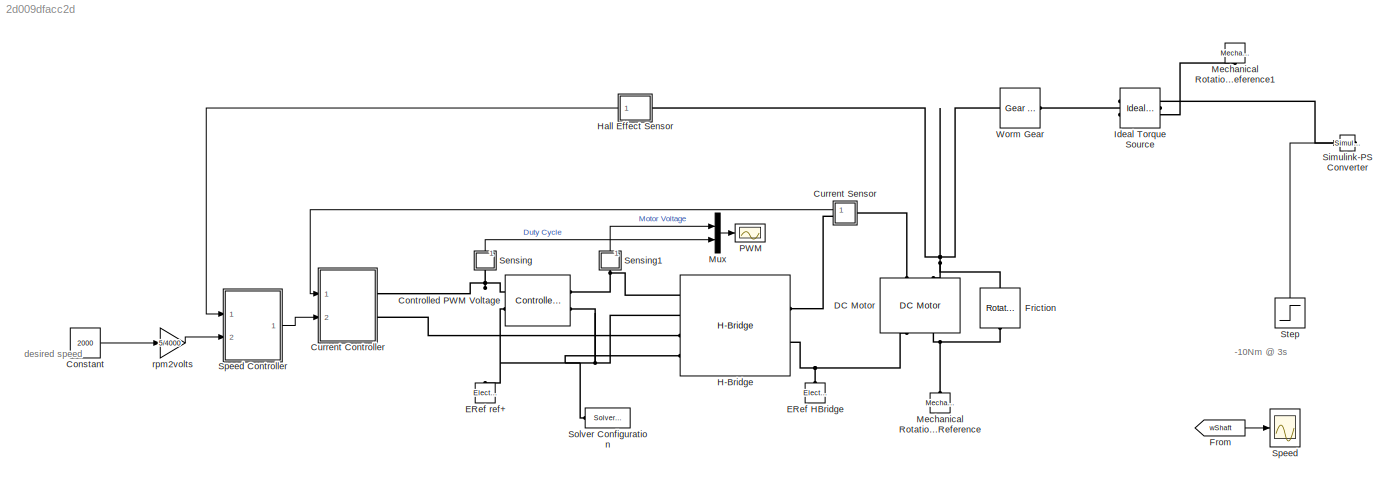
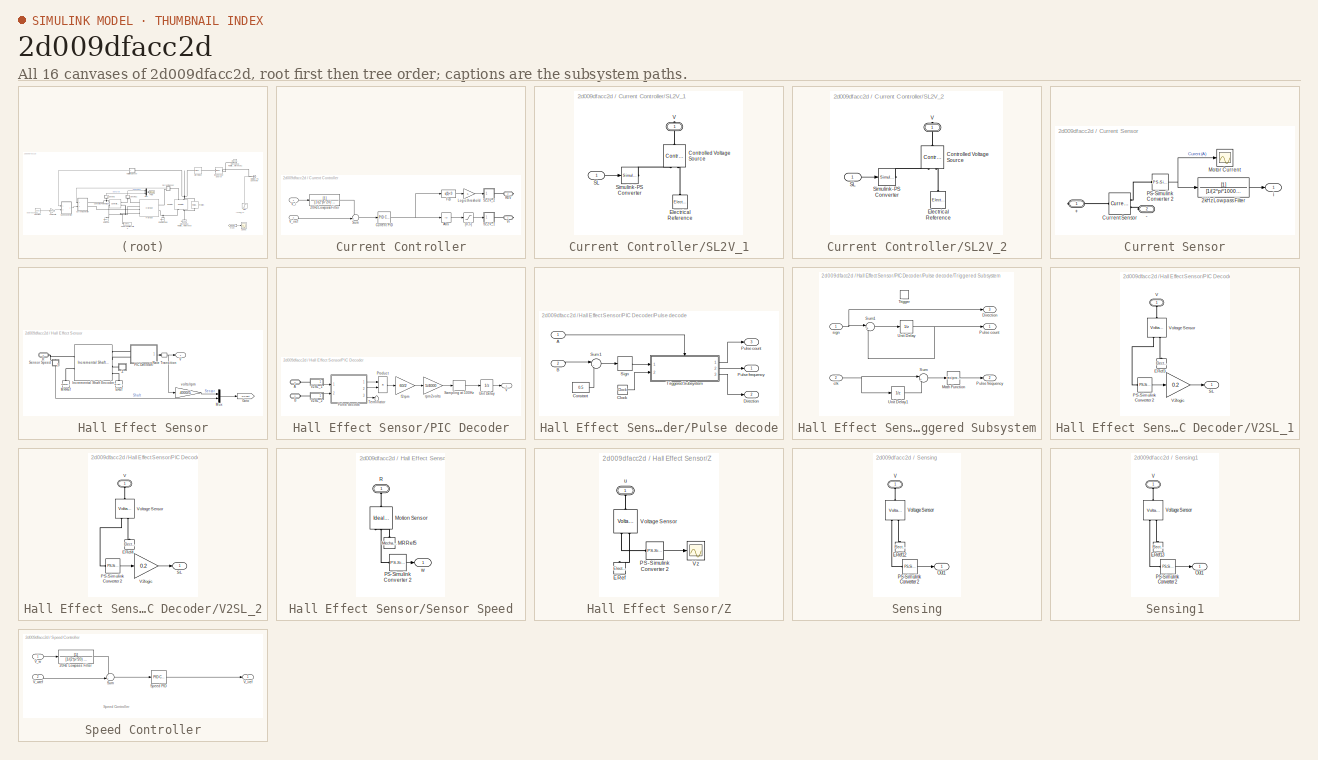
[diagram: thumbnail index - all 16 canvases of the model, root first then tree order]
MODEL slx_2d009dfacc2d
KIND model
CONFIG AbsTol = 1e-3
CONFIG EnableMultiTasking = off
CONFIG FixedStep = auto
CONFIG MaxStep = auto
CONFIG MinStep = auto
CONFIG RelTol = 1e-3
CONFIG SampleTimeConstraint = Unconstrained
CONFIG SolverName = VariableStepAuto
CONFIG StartTime = 0.0
CONFIG StopTime = 10.0
BLOCK [Constant] Constant
  Value = 2000
BLOCK [Reference] Controlled PWM Voltage  REF=ee_lib/Integrated Circuits/Controlled PWM
Voltage
  Ports = [0, 0, 0, 0, 0, 2, 2]
  SourceBlock = ee_lib/Integrated Circuits/Controlled PWM\nVoltage
  SourceProductBaseCode = PS
  SourceType = Controlled PWM\nVoltage
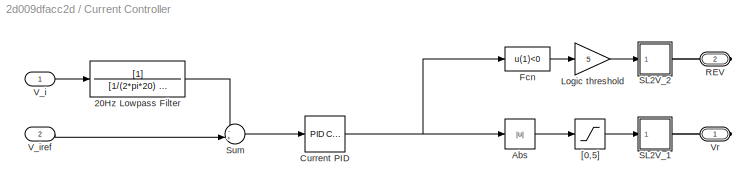
BLOCK [SubSystem] Current Controller
  Ports = [2, 0, 0, 0, 0, 0, 2]
  RequestExecContextInheritance = off
BLOCK [TransferFcn] Current Controller/20Hz Lowpass Filter
  Denominator = [1/(2*pi*20) 1]
BLOCK [Abs] Current Controller/Abs
  SaturateOnIntegerOverflow = off
BLOCK [Reference] Current Controller/Current PID  REF=slpidlib/PID Controller
  Ports = [1, 1]
  SourceBlock = slpidlib/PID Controller
  SourceProductBaseCode = SL
  SourceType = PID 1dof
BLOCK [Fcn] Current Controller/Fcn
  Expr = u(1)<0
BLOCK [Gain] Current Controller/Logic threshold
  Gain = 5
BLOCK [PMIOPort] Current Controller/REV
  Port = 2
  Side = Right
BLOCK [SubSystem] Current Controller/SL2V_1
  Ports = [1, 0, 0, 0, 0, 0, 1]
  RequestExecContextInheritance = off
BLOCK [Reference] Current Controller/SL2V_1/Controlled Voltage Source  REF=fl_lib/Electrical/Electrical Sources/Controlled Voltage
Source
  NameLocation = right
  Ports = [0, 0, 0, 0, 0, 1, 2]
  SourceBlock = fl_lib/Electrical/Electrical Sources/Controlled Voltage\nSource
  SourceProductBaseCode = PW,SS,VE
  SourceType = Controlled Voltage\nSource
BLOCK [Reference] Current Controller/SL2V_1/Electrical Reference  REF=fl_lib/Electrical/Electrical Elements/Electrical Reference
  NameLocation = right
  Ports = [0, 0, 0, 0, 0, 1]
  SourceBlock = fl_lib/Electrical/Electrical Elements/Electrical Reference
  SourceProductBaseCode = PW,SS,VE
  SourceType = Electrical Reference
BLOCK [Inport] Current Controller/SL2V_1/SL
BLOCK [Reference] Current Controller/SL2V_1/Simulink-PS Converter  REF=nesl_utility/Simulink-PS
Converter
  Ports = [1, 0, 0, 0, 0, 0, 1]
  SourceBlock = nesl_utility/Simulink-PS\nConverter
  SourceProductBaseCode = SS,PW,VE
  SourceType = Simulink-PS\nConverter
BLOCK [PMIOPort] Current Controller/SL2V_1/V
  NameLocation = right
  Side = Right
BLOCK [SubSystem] Current Controller/SL2V_2
  Ports = [1, 0, 0, 0, 0, 0, 1]
  RequestExecContextInheritance = off
BLOCK [Reference] Current Controller/SL2V_2/Controlled Voltage Source  REF=fl_lib/Electrical/Electrical Sources/Controlled Voltage
Source
  NameLocation = right
  Ports = [0, 0, 0, 0, 0, 1, 2]
  SourceBlock = fl_lib/Electrical/Electrical Sources/Controlled Voltage\nSource
  SourceProductBaseCode = PW,SS,VE
  SourceType = Controlled Voltage\nSource
BLOCK [Reference] Current Controller/SL2V_2/Electrical Reference  REF=fl_lib/Electrical/Electrical Elements/Electrical Reference
  NameLocation = right
  Ports = [0, 0, 0, 0, 0, 1]
  SourceBlock = fl_lib/Electrical/Electrical Elements/Electrical Reference
  SourceProductBaseCode = PW,SS,VE
  SourceType = Electrical Reference
BLOCK [Inport] Current Controller/SL2V_2/SL
BLOCK [Reference] Current Controller/SL2V_2/Simulink-PS Converter  REF=nesl_utility/Simulink-PS
Converter
  Ports = [1, 0, 0, 0, 0, 0, 1]
  SourceBlock = nesl_utility/Simulink-PS\nConverter
  SourceProductBaseCode = SS,PW,VE
  SourceType = Simulink-PS\nConverter
BLOCK [PMIOPort] Current Controller/SL2V_2/V
  NameLocation = right
  Side = Right
BLOCK [Sum] Current Controller/Sum
  Inputs = -+|
  Ports = [2, 1]
BLOCK [Inport] Current Controller/V_i
BLOCK [Inport] Current Controller/V_iref
  Port = 2
BLOCK [PMIOPort] Current Controller/Vr
  Side = Right
BLOCK [Saturate] Current Controller/[0,5]
  LowerLimit = 0
  UpperLimit = 5
BLOCK [SubSystem] Current Sensor
  NameLocation = top
  Ports = [0, 1, 0, 0, 0, 1, 1]
  RequestExecContextInheritance = off
BLOCK [PMIOPort] Current Sensor/+
  Side = Right
BLOCK [PMIOPort] Current Sensor/-
  Port = 2
  Side = Left
BLOCK [TransferFcn] Current Sensor/2kHz Lowpass Filter
  Denominator = [1/(2*pi*1000) 1]
BLOCK [Reference] Current Sensor/Current Sensor  REF=fl_lib/Electrical/Electrical Sensors/Current Sensor
  Ports = [0, 0, 0, 0, 0, 1, 2]
  SourceBlock = fl_lib/Electrical/Electrical Sensors/Current Sensor
  SourceProductBaseCode = PW,SS,VE
  SourceType = Current Sensor
BLOCK [Scope] Current Sensor/Motor Current
  Floating = off
  NameLocation = top
  NumInputPorts = 1
  Ports = [1]
  ScopeSpecificationString = Simulink.scopes.TimeScopeBlockCfg('CurrentConfiguration', extmgr.ConfigurationSet(extmgr.Configuration('Core','General UI',true),extmgr.Configuration('Core','Source UI',true),extmgr.Configuration('Sources','WiredSimulink',true,'DataLoggingVariableName','ScopeData3','DataLoggingSaveFormat','StructureWithTime','DataLoggingDecimation','1'),extmgr.Configuration('Visuals','Time Domain',true,'Serialized...<+1743ch>
BLOCK [Reference] Current Sensor/PS-Simulink Converter 2  REF=nesl_utility/PS-Simulink
Converter
  Ports = [0, 1, 0, 0, 0, 1]
  SourceBlock = nesl_utility/PS-Simulink\nConverter
  SourceProductBaseCode = SS,PW,VE
  SourceType = PS-Simulink\nConverter
BLOCK [Outport] Current Sensor/i
  VectorParamsAs1DForOutWhenUnconnected = off
BLOCK [Reference] DC Motor  REF=ee_lib/Electromechanical/Brushed Motors/DC Motor
  NameLocation = left
  Ports = [0, 0, 0, 0, 0, 2, 2]
  SourceBlock = ee_lib/Electromechanical/Brushed Motors/DC Motor
  SourceProductBaseCode = PS
  SourceType = DC Motor
BLOCK [Reference] ERef HBridge  REF=fl_lib/Electrical/Electrical Elements/Electrical Reference
  NameLocation = right
  Ports = [0, 0, 0, 0, 0, 1]
  SourceBlock = fl_lib/Electrical/Electrical Elements/Electrical Reference
  SourceProductBaseCode = PW,SS,VE
  SourceType = Electrical Reference
BLOCK [Reference] ERef ref+  REF=fl_lib/Electrical/Electrical Elements/Electrical Reference
  NameLocation = right
  Ports = [0, 0, 0, 0, 0, 1]
  SourceBlock = fl_lib/Electrical/Electrical Elements/Electrical Reference
  SourceProductBaseCode = PW,SS,VE
  SourceType = Electrical Reference
BLOCK [Reference] Friction  REF=fl_lib/Mechanical/Rotational Elements/Rotational Friction
  NameLocation = right
  Ports = [0, 0, 0, 0, 0, 1, 1]
  SourceBlock = fl_lib/Mechanical/Rotational Elements/Rotational Friction
  SourceProductBaseCode = PW,SS,VE
  SourceType = Rotational Friction
BLOCK [From] From
  GotoTag = wShaft
  TagVisibility = global
BLOCK [Reference] H-Bridge  REF=ee_lib/Semiconductors &
Converters/Converters/H-Bridge
  Ports = [0, 0, 0, 0, 0, 4, 2]
  SourceBlock = ee_lib/Semiconductors &\nConverters/Converters/H-Bridge
  SourceProductBaseCode = PS
  SourceType = H-Bridge
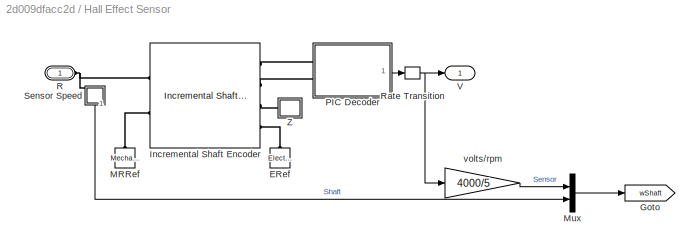
BLOCK [SubSystem] Hall Effect Sensor
  NameLocation = top
  Ports = [0, 1, 0, 0, 0, 1]
  RequestExecContextInheritance = off
BLOCK [Reference] Hall Effect Sensor/ERef  REF=fl_lib/Electrical/Electrical Elements/Electrical Reference
  NameLocation = right
  Ports = [0, 0, 0, 0, 0, 1]
  SourceBlock = fl_lib/Electrical/Electrical Elements/Electrical Reference
  SourceProductBaseCode = PW,SS,VE
  SourceType = Electrical Reference
BLOCK [Goto] Hall Effect Sensor/Goto
  GotoTag = wShaft
  TagVisibility = global
BLOCK [Reference] Hall Effect Sensor/Incremental Shaft Encoder  REF=ee_lib/Sensors &
Transducers/Incremental Shaft
Encoder
  Ports = [0, 0, 0, 0, 0, 2, 4]
  SourceBlock = ee_lib/Sensors &\nTransducers/Incremental Shaft\nEncoder
  SourceProductBaseCode = PS
  SourceType = Incremental Shaft\nEncoder
BLOCK [Reference] Hall Effect Sensor/MRRef  REF=fl_lib/Mechanical/Rotational Elements/Mechanical
Rotational Reference
  NameLocation = left
  Ports = [0, 0, 0, 0, 0, 1]
  SourceBlock = fl_lib/Mechanical/Rotational Elements/Mechanical\nRotational Reference
  SourceProductBaseCode = PW,SS,VE
  SourceType = Mechanical\nRotational Reference
BLOCK [Mux] Hall Effect Sensor/Mux
  DisplayOption = bar
  Inputs = 2
  Ports = [2, 1]
BLOCK [SubSystem] Hall Effect Sensor/PIC Decoder
  Ports = [0, 1, 0, 0, 0, 2]
  RequestExecContextInheritance = off
BLOCK [PMIOPort] Hall Effect Sensor/PIC Decoder/A
  Side = Left
BLOCK [PMIOPort] Hall Effect Sensor/PIC Decoder/B
  Port = 2
  Side = Left
BLOCK [Product] Hall Effect Sensor/PIC Decoder/Product
  Ports = [2, 1]
  RndMeth = Zero
BLOCK [SubSystem] Hall Effect Sensor/PIC Decoder/Pulse decode
  Ports = [2, 3]
  RequestExecContextInheritance = off
BLOCK [Inport] Hall Effect Sensor/PIC Decoder/Pulse decode/A
BLOCK [Inport] Hall Effect Sensor/PIC Decoder/Pulse decode/B
  Port = 2
BLOCK [Clock] Hall Effect Sensor/PIC Decoder/Pulse decode/Clock
BLOCK [Constant] Hall Effect Sensor/PIC Decoder/Pulse decode/Constant
  Value = 0.5
BLOCK [Outport] Hall Effect Sensor/PIC Decoder/Pulse decode/Direction
  Port = 2
  VectorParamsAs1DForOutWhenUnconnected = off
BLOCK [Outport] Hall Effect Sensor/PIC Decoder/Pulse decode/Pulse count
  Port = 3
  VectorParamsAs1DForOutWhenUnconnected = off
BLOCK [Outport] Hall Effect Sensor/PIC Decoder/Pulse decode/Pulse frequency
  VectorParamsAs1DForOutWhenUnconnected = off
BLOCK [Signum] Hall Effect Sensor/PIC Decoder/Pulse decode/Sign
BLOCK [Sum] Hall Effect Sensor/PIC Decoder/Pulse decode/Sum1
  Inputs = |-+
  Ports = [2, 1]
BLOCK [SubSystem] Hall Effect Sensor/PIC Decoder/Pulse decode/Triggered Subsystem
  Ports = [2, 3, 0, 1]
  RequestExecContextInheritance = off
  TreatAsAtomicUnit = on
BLOCK [Outport] Hall Effect Sensor/PIC Decoder/Pulse decode/Triggered Subsystem/Direction
  InitialOutput = 0
  Port = 3
  VectorParamsAs1DForOutWhenUnconnected = off
BLOCK [Math] Hall Effect Sensor/PIC Decoder/Pulse decode/Triggered Subsystem/Math Function
  Operator = reciprocal
  Ports = [1, 1]
  SignedPower = on
BLOCK [Outport] Hall Effect Sensor/PIC Decoder/Pulse decode/Triggered Subsystem/Pulse count
  InitialOutput = 0
  VectorParamsAs1DForOutWhenUnconnected = off
BLOCK [Outport] Hall Effect Sensor/PIC Decoder/Pulse decode/Triggered Subsystem/Pulse frequency
  Port = 2
  VectorParamsAs1DForOutWhenUnconnected = off
BLOCK [Sum] Hall Effect Sensor/PIC Decoder/Pulse decode/Triggered Subsystem/Sum
  Inputs = |+-
  Ports = [2, 1]
BLOCK [Sum] Hall Effect Sensor/PIC Decoder/Pulse decode/Triggered Subsystem/Sum1
  Inputs = |++
  Ports = [2, 1]
BLOCK [TriggerPort] Hall Effect Sensor/PIC Decoder/Pulse decode/Triggered Subsystem/Trigger
  Ports = []
  StatesWhenEnabling = held
  VariantControl = Variant
BLOCK [UnitDelay] Hall Effect Sensor/PIC Decoder/Pulse decode/Triggered Subsystem/Unit Delay
  HasFrameUpgradeWarning = on
  SampleTime = -1
BLOCK [UnitDelay] Hall Effect Sensor/PIC Decoder/Pulse decode/Triggered Subsystem/Unit Delay1
  HasFrameUpgradeWarning = on
  InitialCondition = -1e10
  SampleTime = -1
BLOCK [Inport] Hall Effect Sensor/PIC Decoder/Pulse decode/Triggered Subsystem/clk
  Port = 2
BLOCK [Inport] Hall Effect Sensor/PIC Decoder/Pulse decode/Triggered Subsystem/sign
BLOCK [ZeroOrderHold] Hall Effect Sensor/PIC Decoder/Sampling at 100Hz
  SampleTime = 0.01
BLOCK [Terminator] Hall Effect Sensor/PIC Decoder/Terminator
BLOCK [UnitDelay] Hall Effect Sensor/PIC Decoder/Unit Delay
  HasFrameUpgradeWarning = on
  SampleTime = 0.01
BLOCK [Outport] Hall Effect Sensor/PIC Decoder/V
  VectorParamsAs1DForOutWhenUnconnected = off
BLOCK [SubSystem] Hall Effect Sensor/PIC Decoder/V2SL_1
  Ports = [0, 1, 0, 0, 0, 1]
  RequestExecContextInheritance = off
BLOCK [Reference] Hall Effect Sensor/PIC Decoder/V2SL_1/ERef3  REF=fl_lib/Electrical/Electrical Elements/Electrical Reference
  NameLocation = right
  Ports = [0, 0, 0, 0, 0, 1]
  SourceBlock = fl_lib/Electrical/Electrical Elements/Electrical Reference
  SourceProductBaseCode = PW,SS,VE
  SourceType = Electrical Reference
BLOCK [Reference] Hall Effect Sensor/PIC Decoder/V2SL_1/PS-Simulink Converter 2  REF=nesl_utility/PS-Simulink
Converter
  Ports = [0, 1, 0, 0, 0, 1]
  SourceBlock = nesl_utility/PS-Simulink\nConverter
  SourceProductBaseCode = SS,PW,VE
  SourceType = PS-Simulink\nConverter
BLOCK [Outport] Hall Effect Sensor/PIC Decoder/V2SL_1/SL
  VectorParamsAs1DForOutWhenUnconnected = off
BLOCK [PMIOPort] Hall Effect Sensor/PIC Decoder/V2SL_1/V
  NameLocation = right
  Side = Left
BLOCK [Gain] Hall Effect Sensor/PIC Decoder/V2SL_1/V2logic
  Gain = 0.2
BLOCK [Reference] Hall Effect Sensor/PIC Decoder/V2SL_1/Voltage Sensor  REF=fl_lib/Electrical/Electrical Sensors/Voltage Sensor
  NameLocation = right
  Ports = [0, 0, 0, 0, 0, 1, 2]
  SourceBlock = fl_lib/Electrical/Electrical Sensors/Voltage Sensor
  SourceProductBaseCode = PW,SS,VE
  SourceType = Voltage Sensor
BLOCK [SubSystem] Hall Effect Sensor/PIC Decoder/V2SL_2
  Ports = [0, 1, 0, 0, 0, 1]
  RequestExecContextInheritance = off
BLOCK [Reference] Hall Effect Sensor/PIC Decoder/V2SL_2/ERef4  REF=fl_lib/Electrical/Electrical Elements/Electrical Reference
  NameLocation = right
  Ports = [0, 0, 0, 0, 0, 1]
  SourceBlock = fl_lib/Electrical/Electrical Elements/Electrical Reference
  SourceProductBaseCode = PW,SS,VE
  SourceType = Electrical Reference
BLOCK [Reference] Hall Effect Sensor/PIC Decoder/V2SL_2/PS-Simulink Converter 2  REF=nesl_utility/PS-Simulink
Converter
  Ports = [0, 1, 0, 0, 0, 1]
  SourceBlock = nesl_utility/PS-Simulink\nConverter
  SourceProductBaseCode = SS,PW,VE
  SourceType = PS-Simulink\nConverter
BLOCK [Outport] Hall Effect Sensor/PIC Decoder/V2SL_2/SL
  VectorParamsAs1DForOutWhenUnconnected = off
BLOCK [PMIOPort] Hall Effect Sensor/PIC Decoder/V2SL_2/V
  NameLocation = right
  Side = Left
BLOCK [Gain] Hall Effect Sensor/PIC Decoder/V2SL_2/V2logic
  Gain = 0.2
BLOCK [Reference] Hall Effect Sensor/PIC Decoder/V2SL_2/Voltage Sensor  REF=fl_lib/Electrical/Electrical Sensors/Voltage Sensor
  NameLocation = right
  Ports = [0, 0, 0, 0, 0, 1, 2]
  SourceBlock = fl_lib/Electrical/Electrical Sensors/Voltage Sensor
  SourceProductBaseCode = PW,SS,VE
  SourceType = Voltage Sensor
BLOCK [Gain] Hall Effect Sensor/PIC Decoder/f2rpm
  Gain = 60/2
BLOCK [Gain] Hall Effect Sensor/PIC Decoder/rpm2volts
  Gain = 5/4000
BLOCK [PMIOPort] Hall Effect Sensor/R
  Side = Left
BLOCK [RateTransition] Hall Effect Sensor/Rate Transition
BLOCK [SubSystem] Hall Effect Sensor/Sensor Speed
  NameLocation = left
  Ports = [0, 1, 0, 0, 0, 1]
  RequestExecContextInheritance = off
BLOCK [Reference] Hall Effect Sensor/Sensor Speed/MRRef5  REF=fl_lib/Mechanical/Rotational Elements/Mechanical
Rotational Reference
  NameLocation = left
  Ports = [0, 0, 0, 0, 0, 1]
  SourceBlock = fl_lib/Mechanical/Rotational Elements/Mechanical\nRotational Reference
  SourceProductBaseCode = PW,SS,VE
  SourceType = Mechanical\nRotational Reference
BLOCK [Reference] Hall Effect Sensor/Sensor Speed/Motion Sensor  REF=fl_lib/Mechanical/Mechanical Sensors/Ideal Rotational
Motion Sensor
  NameLocation = right
  Ports = [0, 0, 0, 0, 0, 1, 3]
  SourceBlock = fl_lib/Mechanical/Mechanical Sensors/Ideal Rotational\nMotion Sensor
  SourceProductBaseCode = PW,SS,VE
  SourceType = Ideal Rotational\nMotion Sensor
BLOCK [Reference] Hall Effect Sensor/Sensor Speed/PS-Simulink Converter 2  REF=nesl_utility/PS-Simulink
Converter
  Ports = [0, 1, 0, 0, 0, 1]
  SourceBlock = nesl_utility/PS-Simulink\nConverter
  SourceProductBaseCode = SS,PW,VE
  SourceType = PS-Simulink\nConverter
BLOCK [PMIOPort] Hall Effect Sensor/Sensor Speed/R
  NameLocation = right
  Side = Left
BLOCK [Outport] Hall Effect Sensor/Sensor Speed/w
  VectorParamsAs1DForOutWhenUnconnected = off
BLOCK [Outport] Hall Effect Sensor/V
  VectorParamsAs1DForOutWhenUnconnected = off
BLOCK [SubSystem] Hall Effect Sensor/Z
  Ports = [0, 0, 0, 0, 0, 1]
  RequestExecContextInheritance = off
BLOCK [Reference] Hall Effect Sensor/Z/ERef  REF=fl_lib/Electrical/Electrical Elements/Electrical Reference
  NameLocation = right
  Ports = [0, 0, 0, 0, 0, 1]
  SourceBlock = fl_lib/Electrical/Electrical Elements/Electrical Reference
  SourceProductBaseCode = PW,SS,VE
  SourceType = Electrical Reference
BLOCK [Reference] Hall Effect Sensor/Z/PS-Simulink Converter 2  REF=nesl_utility/PS-Simulink
Converter
  Ports = [0, 1, 0, 0, 0, 1]
  SourceBlock = nesl_utility/PS-Simulink\nConverter
  SourceProductBaseCode = SS,PW,VE
  SourceType = PS-Simulink\nConverter
BLOCK [Reference] Hall Effect Sensor/Z/Voltage Sensor  REF=fl_lib/Electrical/Electrical Sensors/Voltage Sensor
  NameLocation = right
  Ports = [0, 0, 0, 0, 0, 1, 2]
  SourceBlock = fl_lib/Electrical/Electrical Sensors/Voltage Sensor
  SourceProductBaseCode = PW,SS,VE
  SourceType = Voltage Sensor
BLOCK [Scope] Hall Effect Sensor/Z/Vz
  Floating = off
  NumInputPorts = 1
  Ports = [1]
  ScopeSpecificationString = Simulink.scopes.TimeScopeBlockCfg('CurrentConfiguration', extmgr.ConfigurationSet(extmgr.Configuration('Core','General UI',true),extmgr.Configuration('Core','Source UI',true),extmgr.Configuration('Sources','WiredSimulink',true,'DataLoggingVariableName','ScopeData6','DataLoggingSaveFormat','StructureWithTime','DataLoggingDecimation','1'),extmgr.Configuration('Visuals','Time Domain',true,'Serialized...<+1618ch>
BLOCK [PMIOPort] Hall Effect Sensor/Z/u
  NameLocation = right
  Side = Left
BLOCK [Gain] Hall Effect Sensor/volts//rpm
  Gain = 4000/5
  NameLocation = top
BLOCK [Reference] Ideal Torque Source  REF=fl_lib/Mechanical/Mechanical Sources/Ideal Torque Source
  NameLocation = top
  Ports = [0, 0, 0, 0, 0, 1, 2]
  SourceBlock = fl_lib/Mechanical/Mechanical Sources/Ideal Torque Source
  SourceProductBaseCode = PW,SS,VE
  SourceType = Ideal Torque Source
BLOCK [Reference] Mechanical Rotational Reference  REF=fl_lib/Mechanical/Rotational Elements/Mechanical
Rotational Reference
  NameLocation = right
  Ports = [0, 0, 0, 0, 0, 1]
  SourceBlock = fl_lib/Mechanical/Rotational Elements/Mechanical\nRotational Reference
  SourceProductBaseCode = PW,SS,VE
  SourceType = Mechanical\nRotational Reference
BLOCK [Reference] Mechanical Rotational Reference1  REF=fl_lib/Mechanical/Rotational Elements/Mechanical
Rotational Reference
  NameLocation = right
  Ports = [0, 0, 0, 0, 0, 1]
  SourceBlock = fl_lib/Mechanical/Rotational Elements/Mechanical\nRotational Reference
  SourceProductBaseCode = PW,SS,VE
  SourceType = Mechanical\nRotational Reference
BLOCK [Mux] Mux
  DisplayOption = bar
  Inputs = 2
  Ports = [2, 1]
BLOCK [Scope] PWM
  Floating = off
  NumInputPorts = 1
  Ports = [1]
  ScopeSpecificationString = Simulink.scopes.TimeScopeBlockCfg('CurrentConfiguration', extmgr.ConfigurationSet(extmgr.Configuration('Core','General UI',true,'FigureColor',[0.501960784313725 0.501960784313725 0.501960784313725]),extmgr.Configuration('Core','Source UI',true),extmgr.Configuration('Sources','WiredSimulink',true,'DataLoggingSaveFormat','StructureWithTime','DataLoggingDecimation','1','DataLoggingVariableName','Scop...<+2770ch>
BLOCK [SubSystem] Sensing
  NameLocation = right
  Ports = [0, 1, 0, 0, 0, 1]
  RequestExecContextInheritance = off
BLOCK [Reference] Sensing/ERef12  REF=fl_lib/Electrical/Electrical Elements/Electrical Reference
  NameLocation = right
  Ports = [0, 0, 0, 0, 0, 1]
  SourceBlock = fl_lib/Electrical/Electrical Elements/Electrical Reference
  SourceProductBaseCode = PW,SS,VE
  SourceType = Electrical Reference
BLOCK [Outport] Sensing/Out1
  VectorParamsAs1DForOutWhenUnconnected = off
BLOCK [Reference] Sensing/PS-Simulink Converter 2  REF=nesl_utility/PS-Simulink
Converter
  Ports = [0, 1, 0, 0, 0, 1]
  SourceBlock = nesl_utility/PS-Simulink\nConverter
  SourceProductBaseCode = SS,PW,VE
  SourceType = PS-Simulink\nConverter
BLOCK [PMIOPort] Sensing/V
  NameLocation = right
  Side = Left
BLOCK [Reference] Sensing/Voltage Sensor  REF=fl_lib/Electrical/Electrical Sensors/Voltage Sensor
  NameLocation = right
  Ports = [0, 0, 0, 0, 0, 1, 2]
  SourceBlock = fl_lib/Electrical/Electrical Sensors/Voltage Sensor
  SourceProductBaseCode = PW,SS,VE
  SourceType = Voltage Sensor
BLOCK [SubSystem] Sensing1
  NameLocation = right
  Ports = [0, 1, 0, 0, 0, 1]
  RequestExecContextInheritance = off
BLOCK [Reference] Sensing1/ERef13  REF=fl_lib/Electrical/Electrical Elements/Electrical Reference
  NameLocation = right
  Ports = [0, 0, 0, 0, 0, 1]
  SourceBlock = fl_lib/Electrical/Electrical Elements/Electrical Reference
  SourceProductBaseCode = PW,SS,VE
  SourceType = Electrical Reference
BLOCK [Outport] Sensing1/Out1
  VectorParamsAs1DForOutWhenUnconnected = off
BLOCK [Reference] Sensing1/PS-Simulink Converter 2  REF=nesl_utility/PS-Simulink
Converter
  Ports = [0, 1, 0, 0, 0, 1]
  SourceBlock = nesl_utility/PS-Simulink\nConverter
  SourceProductBaseCode = SS,PW,VE
  SourceType = PS-Simulink\nConverter
BLOCK [PMIOPort] Sensing1/V
  NameLocation = right
  Side = Left
BLOCK [Reference] Sensing1/Voltage Sensor  REF=fl_lib/Electrical/Electrical Sensors/Voltage Sensor
  NameLocation = right
  Ports = [0, 0, 0, 0, 0, 1, 2]
  SourceBlock = fl_lib/Electrical/Electrical Sensors/Voltage Sensor
  SourceProductBaseCode = PW,SS,VE
  SourceType = Voltage Sensor
BLOCK [Reference] Simulink-PS Converter  REF=nesl_utility/Simulink-PS
Converter
  Ports = [1, 0, 0, 0, 0, 0, 1]
  SourceBlock = nesl_utility/Simulink-PS\nConverter
  SourceProductBaseCode = SS,PW,VE
  SourceType = Simulink-PS\nConverter
BLOCK [Reference] Solver Configuration  REF=nesl_utility/Solver
Configuration
  Ports = [0, 0, 0, 0, 0, 0, 1]
  SourceBlock = nesl_utility/Solver\nConfiguration
  SourceProductBaseCode = SS,PW,VE
  SourceType = Solver\nConfiguration
BLOCK [Scope] Speed
  Floating = off
  NumInputPorts = 1
  Ports = [1]
  ScopeSpecificationString = Simulink.scopes.TimeScopeBlockCfg('CurrentConfiguration', extmgr.ConfigurationSet(extmgr.Configuration('Core','General UI',true,'FigureColor',[0.501960784313725 0.501960784313725 0.501960784313725]),extmgr.Configuration('Core','Source UI',true),extmgr.Configuration('Sources','WiredSimulink',true,'DataLoggingVariableName','ScopeData2','DataLoggingSaveFormat','StructureWithTime','DataLoggingDecimati...<+2166ch>
BLOCK [SubSystem] Speed Controller
  Ports = [2, 1]
  RequestExecContextInheritance = off
BLOCK [TransferFcn] Speed Controller/20Hz Lowpass Filter
  Denominator = [1/(2*pi*20) 1]
BLOCK [Reference] Speed Controller/Speed PID  REF=slpidlib/PID Controller
  Ports = [1, 1]
  SourceBlock = slpidlib/PID Controller
  SourceProductBaseCode = SL
  SourceType = PID 1dof
BLOCK [Sum] Speed Controller/Sum
  Inputs = -+|
  Ports = [2, 1]
BLOCK [Outport] Speed Controller/V_iref
  VectorParamsAs1DForOutWhenUnconnected = off
BLOCK [Inport] Speed Controller/V_w
BLOCK [Inport] Speed Controller/V_wref
  Port = 2
BLOCK [Step] Step
  After = -10
  NameLocation = right
  SampleTime = 0
  Time = 3
BLOCK [Reference] Worm Gear  REF=fl_lib/Mechanical/Mechanisms/Gear Box
  Ports = [0, 0, 0, 0, 0, 1, 1]
  SourceBlock = fl_lib/Mechanical/Mechanisms/Gear Box
  SourceProductBaseCode = PW,SS,VE
  SourceType = Gear Box
BLOCK [Gain] rpm2volts
  Gain = 5/4000
ANNOTATION (root): -10Nm @ 3s
ANNOTATION (root): desired speed
ANNOTATION Speed Controller: Speed Controller
LINE Constant:1 -> rpm2volts:1
LINE Current Controller/20Hz Lowpass Filter:1 -> Current Controller/Sum:1
LINE Current Controller/Abs:1 -> Current Controller/[0,5]:1
NET Current Controller/Current PID:1 -> Current Controller/Abs:1, Current Controller/Fcn:1
LINE Current Controller/Fcn:1 -> Current Controller/Logic threshold:1
LINE Current Controller/Logic threshold:1 -> Current Controller/SL2V_2:1
LINE Current Controller/SL2V_1/SL:1 -> Current Controller/SL2V_1/Simulink-PS Converter:1
LINE Current Controller/SL2V_2/SL:1 -> Current Controller/SL2V_2/Simulink-PS Converter:1
LINE Current Controller/Sum:1 -> Current Controller/Current PID:1
LINE Current Controller/V_i:1 -> Current Controller/20Hz Lowpass Filter:1
LINE Current Controller/V_iref:1 -> Current Controller/Sum:2
LINE Current Controller/[0,5]:1 -> Current Controller/SL2V_1:1
LINE Current Sensor/2kHz Lowpass Filter:1 -> Current Sensor/i:1
NET Current Sensor/PS-Simulink Converter 2:1 -> Current Sensor/2kHz Lowpass Filter:1, Current Sensor/Motor Current:1
LINE Current Sensor:1 -> Current Controller:1
LINE From:1 -> Speed:1
LINE Hall Effect Sensor/Mux:1 -> Hall Effect Sensor/Goto:1
LINE Hall Effect Sensor/PIC Decoder/Product:1 -> Hall Effect Sensor/PIC Decoder/f2rpm:1
LINE Hall Effect Sensor/PIC Decoder/Pulse decode/A:1 -> Hall Effect Sensor/PIC Decoder/Pulse decode/Triggered Subsystem:trigger
LINE Hall Effect Sensor/PIC Decoder/Pulse decode/B:1 -> Hall Effect Sensor/PIC Decoder/Pulse decode/Sum1:1
LINE Hall Effect Sensor/PIC Decoder/Pulse decode/Clock:1 -> Hall Effect Sensor/PIC Decoder/Pulse decode/Triggered Subsystem:2
LINE Hall Effect Sensor/PIC Decoder/Pulse decode/Constant:1 -> Hall Effect Sensor/PIC Decoder/Pulse decode/Sum1:2
LINE Hall Effect Sensor/PIC Decoder/Pulse decode/Sign:1 -> Hall Effect Sensor/PIC Decoder/Pulse decode/Triggered Subsystem:1
LINE Hall Effect Sensor/PIC Decoder/Pulse decode/Sum1:1 -> Hall Effect Sensor/PIC Decoder/Pulse decode/Sign:1
LINE Hall Effect Sensor/PIC Decoder/Pulse decode/Triggered Subsystem/Math Function:1 -> Hall Effect Sensor/PIC Decoder/Pulse decode/Triggered Subsystem/Pulse frequency:1
LINE Hall Effect Sensor/PIC Decoder/Pulse decode/Triggered Subsystem/Sum1:1 -> Hall Effect Sensor/PIC Decoder/Pulse decode/Triggered Subsystem/Unit Delay:1
LINE Hall Effect Sensor/PIC Decoder/Pulse decode/Triggered Subsystem/Sum:1 -> Hall Effect Sensor/PIC Decoder/Pulse decode/Triggered Subsystem/Math Function:1
LINE Hall Effect Sensor/PIC Decoder/Pulse decode/Triggered Subsystem/Unit Delay1:1 -> Hall Effect Sensor/PIC Decoder/Pulse decode/Triggered Subsystem/Sum:2
NET Hall Effect Sensor/PIC Decoder/Pulse decode/Triggered Subsystem/Unit Delay:1 -> Hall Effect Sensor/PIC Decoder/Pulse decode/Triggered Subsystem/Pulse count:1, Hall Effect Sensor/PIC Decoder/Pulse decode/Triggered Subsystem/Sum1:2
NET Hall Effect Sensor/PIC Decoder/Pulse decode/Triggered Subsystem/clk:1 -> Hall Effect Sensor/PIC Decoder/Pulse decode/Triggered Subsystem/Sum:1, Hall Effect Sensor/PIC Decoder/Pulse decode/Triggered Subsystem/Unit Delay1:1
NET Hall Effect Sensor/PIC Decoder/Pulse decode/Triggered Subsystem/sign:1 -> Hall Effect Sensor/PIC Decoder/Pulse decode/Triggered Subsystem/Direction:1, Hall Effect Sensor/PIC Decoder/Pulse decode/Triggered Subsystem/Sum1:1
LINE Hall Effect Sensor/PIC Decoder/Pulse decode/Triggered Subsystem:1 -> Hall Effect Sensor/PIC Decoder/Pulse decode/Pulse count:1
LINE Hall Effect Sensor/PIC Decoder/Pulse decode/Triggered Subsystem:2 -> Hall Effect Sensor/PIC Decoder/Pulse decode/Pulse frequency:1
LINE Hall Effect Sensor/PIC Decoder/Pulse decode/Triggered Subsystem:3 -> Hall Effect Sensor/PIC Decoder/Pulse decode/Direction:1
LINE Hall Effect Sensor/PIC Decoder/Pulse decode:1 -> Hall Effect Sensor/PIC Decoder/Product:1
LINE Hall Effect Sensor/PIC Decoder/Pulse decode:2 -> Hall Effect Sensor/PIC Decoder/Product:2
LINE Hall Effect Sensor/PIC Decoder/Pulse decode:3 -> Hall Effect Sensor/PIC Decoder/Terminator:1
LINE Hall Effect Sensor/PIC Decoder/Sampling at 100Hz:1 -> Hall Effect Sensor/PIC Decoder/Unit Delay:1
LINE Hall Effect Sensor/PIC Decoder/Unit Delay:1 -> Hall Effect Sensor/PIC Decoder/V:1
LINE Hall Effect Sensor/PIC Decoder/V2SL_1/PS-Simulink Converter 2:1 -> Hall Effect Sensor/PIC Decoder/V2SL_1/V2logic:1
LINE Hall Effect Sensor/PIC Decoder/V2SL_1/V2logic:1 -> Hall Effect Sensor/PIC Decoder/V2SL_1/SL:1
LINE Hall Effect Sensor/PIC Decoder/V2SL_1:1 -> Hall Effect Sensor/PIC Decoder/Pulse decode:1
LINE Hall Effect Sensor/PIC Decoder/V2SL_2/PS-Simulink Converter 2:1 -> Hall Effect Sensor/PIC Decoder/V2SL_2/V2logic:1
LINE Hall Effect Sensor/PIC Decoder/V2SL_2/V2logic:1 -> Hall Effect Sensor/PIC Decoder/V2SL_2/SL:1
LINE Hall Effect Sensor/PIC Decoder/V2SL_2:1 -> Hall Effect Sensor/PIC Decoder/Pulse decode:2
LINE Hall Effect Sensor/PIC Decoder/f2rpm:1 -> Hall Effect Sensor/PIC Decoder/rpm2volts:1
LINE Hall Effect Sensor/PIC Decoder/rpm2volts:1 -> Hall Effect Sensor/PIC Decoder/Sampling at 100Hz:1
LINE Hall Effect Sensor/PIC Decoder:1 -> Hall Effect Sensor/Rate Transition:1
NET Hall Effect Sensor/Rate Transition:1 -> Hall Effect Sensor/V:1, Hall Effect Sensor/volts//rpm:1
LINE Hall Effect Sensor/Sensor Speed/PS-Simulink Converter 2:1 -> Hall Effect Sensor/Sensor Speed/w:1
LINE Hall Effect Sensor/Sensor Speed:1 -> Hall Effect Sensor/Mux:2
LINE Hall Effect Sensor/Z/PS-Simulink Converter 2:1 -> Hall Effect Sensor/Z/Vz:1
LINE Hall Effect Sensor/volts//rpm:1 -> Hall Effect Sensor/Mux:1
LINE Hall Effect Sensor:1 -> Speed Controller:1
LINE Mux:1 -> PWM:1
LINE Sensing/PS-Simulink Converter 2:1 -> Sensing/Out1:1
LINE Sensing1/PS-Simulink Converter 2:1 -> Sensing1/Out1:1
LINE Sensing1:1 -> Mux:1
LINE Sensing:1 -> Mux:2
LINE Speed Controller/20Hz Lowpass Filter:1 -> Speed Controller/Sum:1
LINE Speed Controller/Speed PID:1 -> Speed Controller/V_iref:1
LINE Speed Controller/Sum:1 -> Speed Controller/Speed PID:1
LINE Speed Controller/V_w:1 -> Speed Controller/20Hz Lowpass Filter:1
LINE Speed Controller/V_wref:1 -> Speed Controller/Sum:2
LINE Speed Controller:1 -> Current Controller:2
LINE Step:1 -> Simulink-PS Converter:1
LINE rpm2volts:1 -> Speed Controller:2
PNET net1: Controlled PWM Voltage:LConn1 -- Current Controller:RConn1 -- Sensing:LConn1
PNET net2: Controlled PWM Voltage:LConn2 -- Controlled PWM Voltage:RConn2 -- ERef ref+:LConn1 -- H-Bridge:LConn2 -- H-Bridge:LConn4 -- Solver Configuration:RConn1
PNET net3: Controlled PWM Voltage:RConn1 -- H-Bridge:LConn1 -- Sensing1:LConn1
PLINE Current Controller/REV:RConn1 -- Current Controller/SL2V_2:RConn1
PLINE Current Controller/SL2V_1/Controlled Voltage Source:LConn1 -- Current Controller/SL2V_1/V:RConn1
PLINE Current Controller/SL2V_1/Controlled Voltage Source:RConn1 -- Current Controller/SL2V_1/Simulink-PS Converter:RConn1
PLINE Current Controller/SL2V_1/Controlled Voltage Source:RConn2 -- Current Controller/SL2V_1/Electrical Reference:LConn1
PLINE Current Controller/SL2V_1:RConn1 -- Current Controller/Vr:RConn1
PLINE Current Controller/SL2V_2/Controlled Voltage Source:LConn1 -- Current Controller/SL2V_2/V:RConn1
PLINE Current Controller/SL2V_2/Controlled Voltage Source:RConn1 -- Current Controller/SL2V_2/Simulink-PS Converter:RConn1
PLINE Current Controller/SL2V_2/Controlled Voltage Source:RConn2 -- Current Controller/SL2V_2/Electrical Reference:LConn1
PLINE Current Controller:RConn2 -- H-Bridge:LConn3
PLINE Current Sensor/+:RConn1 -- Current Sensor/Current Sensor:LConn1
PLINE Current Sensor/-:RConn1 -- Current Sensor/Current Sensor:RConn2
PLINE Current Sensor/Current Sensor:RConn1 -- Current Sensor/PS-Simulink Converter 2:LConn1
PLINE Current Sensor:LConn1 -- DC Motor:LConn1
PLINE Current Sensor:RConn1 -- H-Bridge:RConn1
PNET net4: DC Motor:LConn2 -- Friction:LConn1 -- Hall Effect Sensor:LConn1 -- Worm Gear:LConn1
PNET net5: DC Motor:RConn1 -- ERef HBridge:LConn1 -- H-Bridge:RConn2
PNET net6: DC Motor:RConn2 -- Friction:RConn1 -- Mechanical Rotational Reference:LConn1
PLINE Hall Effect Sensor/ERef:LConn1 -- Hall Effect Sensor/Incremental Shaft Encoder:RConn4
PNET net7: Hall Effect Sensor/Incremental Shaft Encoder:LConn1 -- Hall Effect Sensor/R:RConn1 -- Hall Effect Sensor/Sensor Speed:LConn1
PLINE Hall Effect Sensor/Incremental Shaft Encoder:LConn2 -- Hall Effect Sensor/MRRef:LConn1
PLINE Hall Effect Sensor/Incremental Shaft Encoder:RConn1 -- Hall Effect Sensor/PIC Decoder:LConn1
PLINE Hall Effect Sensor/Incremental Shaft Encoder:RConn2 -- Hall Effect Sensor/PIC Decoder:LConn2
PLINE Hall Effect Sensor/Incremental Shaft Encoder:RConn3 -- Hall Effect Sensor/Z:LConn1
PLINE Hall Effect Sensor/PIC Decoder/A:RConn1 -- Hall Effect Sensor/PIC Decoder/V2SL_1:LConn1
PLINE Hall Effect Sensor/PIC Decoder/B:RConn1 -- Hall Effect Sensor/PIC Decoder/V2SL_2:LConn1
PLINE Hall Effect Sensor/PIC Decoder/V2SL_1/ERef3:LConn1 -- Hall Effect Sensor/PIC Decoder/V2SL_1/Voltage Sensor:RConn2
PLINE Hall Effect Sensor/PIC Decoder/V2SL_1/PS-Simulink Converter 2:LConn1 -- Hall Effect Sensor/PIC Decoder/V2SL_1/Voltage Sensor:RConn1
PLINE Hall Effect Sensor/PIC Decoder/V2SL_1/V:RConn1 -- Hall Effect Sensor/PIC Decoder/V2SL_1/Voltage Sensor:LConn1
PLINE Hall Effect Sensor/PIC Decoder/V2SL_2/ERef4:LConn1 -- Hall Effect Sensor/PIC Decoder/V2SL_2/Voltage Sensor:RConn2
PLINE Hall Effect Sensor/PIC Decoder/V2SL_2/PS-Simulink Converter 2:LConn1 -- Hall Effect Sensor/PIC Decoder/V2SL_2/Voltage Sensor:RConn1
PLINE Hall Effect Sensor/PIC Decoder/V2SL_2/V:RConn1 -- Hall Effect Sensor/PIC Decoder/V2SL_2/Voltage Sensor:LConn1
PLINE Hall Effect Sensor/Sensor Speed/MRRef5:LConn1 -- Hall Effect Sensor/Sensor Speed/Motion Sensor:RConn1
PLINE Hall Effect Sensor/Sensor Speed/Motion Sensor:LConn1 -- Hall Effect Sensor/Sensor Speed/R:RConn1
PLINE Hall Effect Sensor/Sensor Speed/Motion Sensor:RConn2 -- Hall Effect Sensor/Sensor Speed/PS-Simulink Converter 2:LConn1
PLINE Hall Effect Sensor/Z/ERef:LConn1 -- Hall Effect Sensor/Z/Voltage Sensor:RConn2
PLINE Hall Effect Sensor/Z/PS-Simulink Converter 2:LConn1 -- Hall Effect Sensor/Z/Voltage Sensor:RConn1
PLINE Hall Effect Sensor/Z/Voltage Sensor:LConn1 -- Hall Effect Sensor/Z/u:RConn1
PLINE Ideal Torque Source:LConn1 -- Worm Gear:RConn1
PLINE Ideal Torque Source:RConn1 -- Simulink-PS Converter:RConn1
PLINE Ideal Torque Source:RConn2 -- Mechanical Rotational Reference1:LConn1
PLINE Sensing/ERef12:LConn1 -- Sensing/Voltage Sensor:RConn2
PLINE Sensing/PS-Simulink Converter 2:LConn1 -- Sensing/Voltage Sensor:RConn1
PLINE Sensing/V:RConn1 -- Sensing/Voltage Sensor:LConn1
PLINE Sensing1/ERef13:LConn1 -- Sensing1/Voltage Sensor:RConn2
PLINE Sensing1/PS-Simulink Converter 2:LConn1 -- Sensing1/Voltage Sensor:RConn1
PLINE Sensing1/V:RConn1 -- Sensing1/Voltage Sensor:LConn1
note: NET lines group one-source signal fan-out (src -> all destinations, sorted); 1:1 wires keep LINE; PNET lines group multi-terminal physical nets as a canonical sorted terminal list (undirected conserving connections); 2-terminal nets keep the pairwise PLINE form
